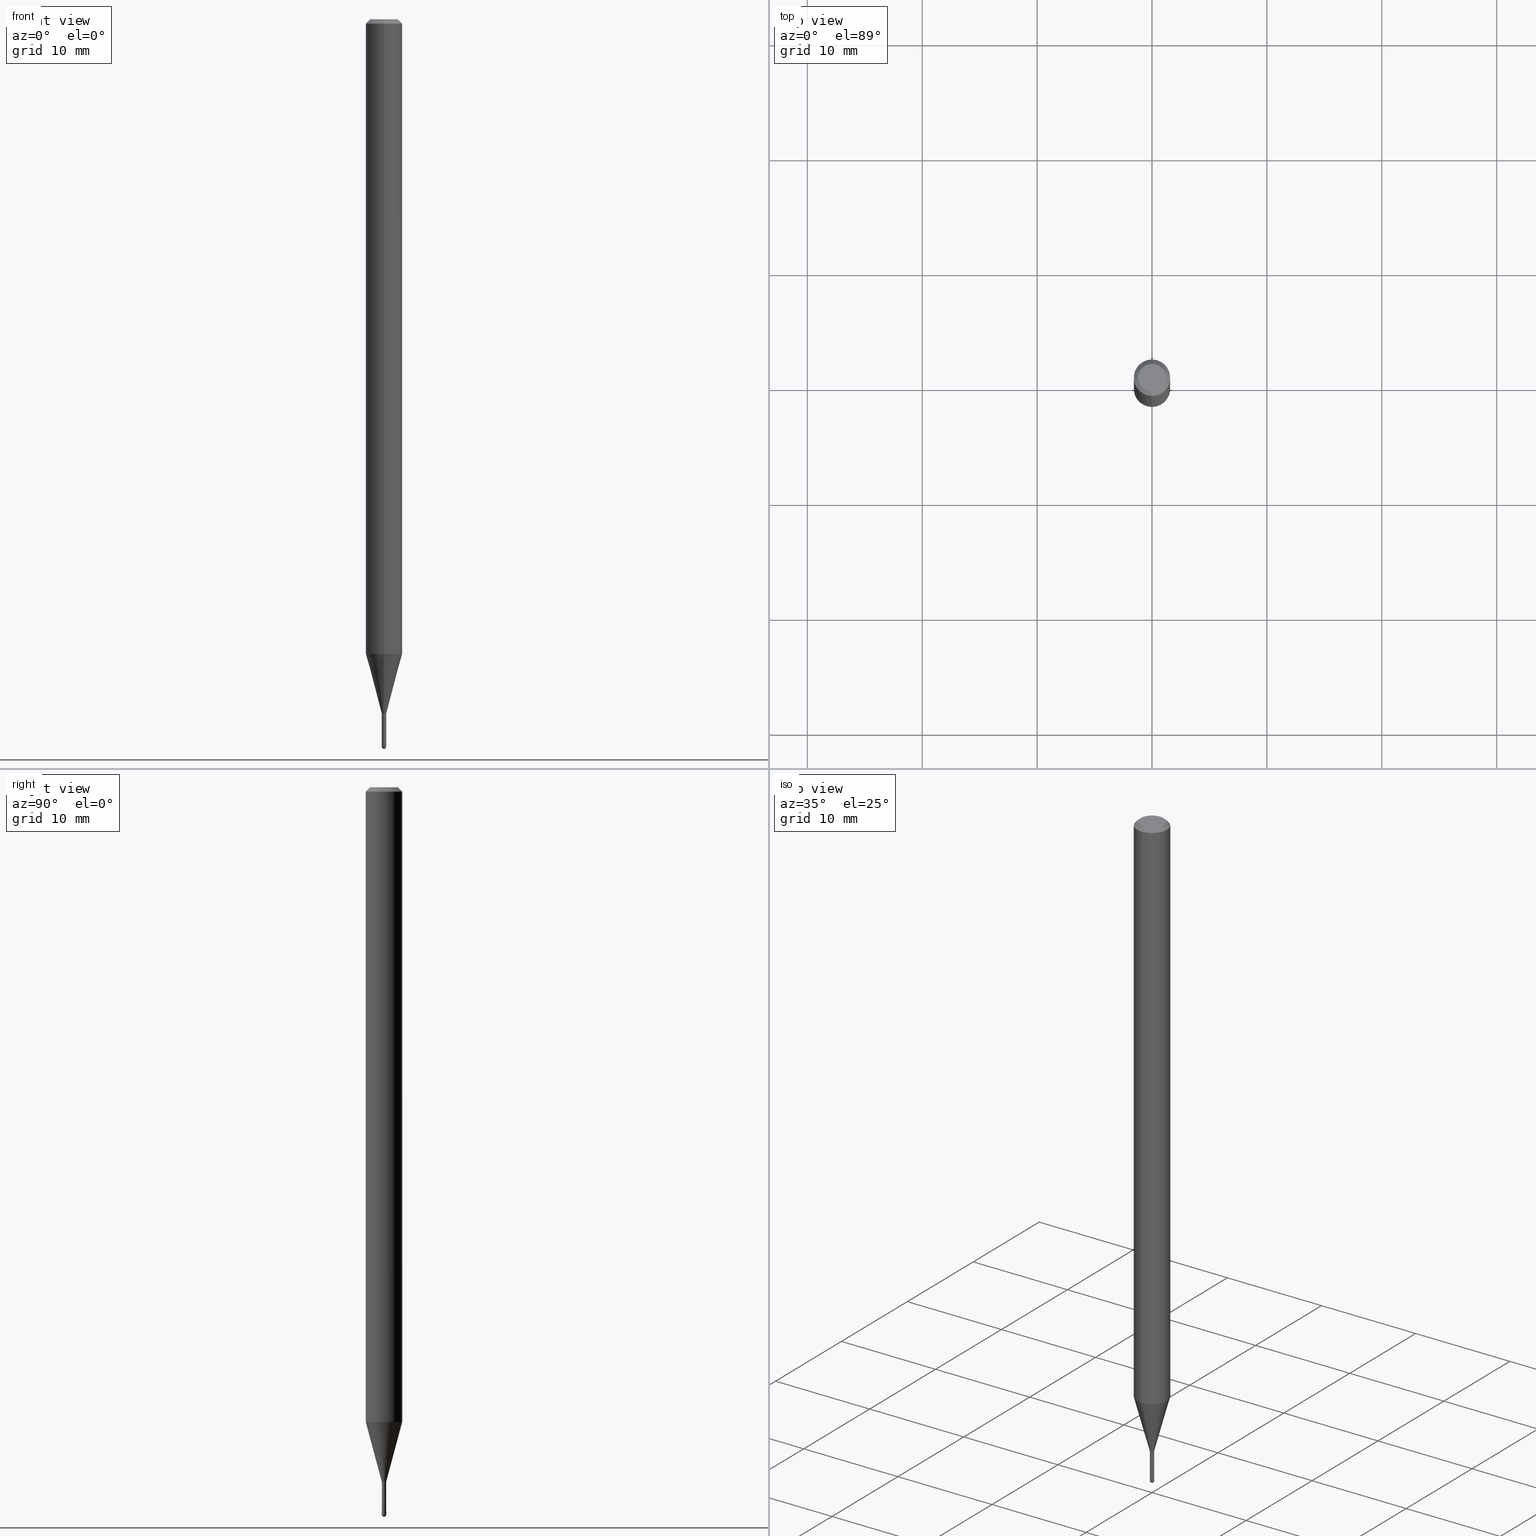
[diagram: canonical four-view strip — front | top / right | iso, engineering-drawing reading convention]
A machine part, canonical four-view strip (front | top / right | iso — engineering-drawing reading convention). The complete STEP part file that produces these views, byte-faithful:
ISO-10303-21;
HEADER;
FILE_DESCRIPTION (( 'STEP AP203' ),
    '1' );
FILE_NAME ('01528.STEP',
    '2024-03-07T19:36:54',
    ( '' ),
    ( '' ),
    'SwSTEP 2.0',
    'SolidWorks 2023',
    '' );
FILE_SCHEMA (( 'CONFIG_CONTROL_DESIGN' ));
ENDSEC;

DATA;
#1 = DIRECTION ( 'NONE',  ( -2.445490445404648555E-29, 3.491450350249176608E-15, 1.000000000000000000 ) ) ;
#2 = APPROVAL ( #274, 'UNSPECIFIED' ) ;
#3 = DIRECTION ( 'NONE',  ( -2.445490445404648555E-29, 3.491450350249176608E-15, 1.000000000000000000 ) ) ;
#4 = DIRECTION ( 'NONE',  ( 2.445490445404648555E-29, -3.491450350249176608E-15, -1.000000000000000000 ) ) ;
#5 = DIRECTION ( 'NONE',  ( 1.000000000000000000, -6.982962677686268288E-15, 0.000000000000000000 ) ) ;
#6 = ORIENTED_EDGE ( 'NONE', *, *, #290, .F. ) ;
#7 = EDGE_CURVE ( 'NONE', #373, #299, #310, .T. ) ;
#8 = DIRECTION ( 'NONE',  ( -2.445468806185136597E-29, 3.491481338843145583E-15, 1.000000000000000000 ) ) ;
#9 = ORIENTED_EDGE ( 'NONE', *, *, #170, .F. ) ;
#10 = ORIENTED_EDGE ( 'NONE', *, *, #215, .F. ) ;
#11 = ADVANCED_FACE ( 'NONE', ( #191 ), #346, .F. ) ;
#12 = DIRECTION ( 'NONE',  ( 2.438088387897960049E-29, -3.491481338843145188E-15, -1.000000000000000000 ) ) ;
#13 = DIRECTION ( 'NONE',  ( -2.445490445404648555E-29, 3.491450350249176608E-15, 1.000000000000000000 ) ) ;
#14 = DIRECTION ( 'NONE',  ( 1.000000000000000000, 0.000000000000000000, 0.000000000000000000 ) ) ;
#15 = EDGE_CURVE ( 'NONE', #299, #373, #187, .T. ) ;
#16 = LENGTH_MEASURE_WITH_UNIT ( LENGTH_MEASURE( 0.02539999999999999897 ), #55 );
#18 = ORIENTED_EDGE ( 'NONE', *, *, #343, .T. ) ;
#17 = CARTESIAN_POINT ( 'NONE',  ( 5.820215758720625190E-29, -8.309725586446686731E-15, -2.379999999999999893 ) ) ;
#19 = CARTESIAN_POINT ( 'NONE',  ( 0.000000000000000000, 0.000000000000000000, 0.000000000000000000 ) ) ;
#20 = CYLINDRICAL_SURFACE ( 'NONE', #448, 0.007499999999999999722 ) ;
#21 = VECTOR ( 'NONE', #358, 39.37007874015748854 ) ;
#22 = DIRECTION ( 'NONE',  ( 6.982962677686266711E-15, 1.000000000000000000, 0.000000000000000000 ) ) ;
#23 = ORIENTED_EDGE ( 'NONE', *, *, #99, .F. ) ;
#24 = CALENDAR_DATE ( 2024, 7, 3 ) ;
#25 = AXIS2_PLACEMENT_3D ( 'NONE', #431, #361, #273 ) ;
#26 = EDGE_CURVE ( 'NONE', #181, #364, #109, .T. ) ;
#27 = DIRECTION ( 'NONE',  ( 1.000000000000000000, -6.982962677686268288E-15, 0.000000000000000000 ) ) ;
#28 = EDGE_CURVE ( 'NONE', #440, #122, #250, .T. ) ;
#29 = ORIENTED_EDGE ( 'NONE', *, *, #182, .T. ) ;
#30 = EDGE_LOOP ( 'NONE', ( #329, #374, #342, #6 ) ) ;
#31 = VECTOR ( 'NONE', #451, 39.37007874015748143 ) ;
#32 = ORIENTED_EDGE ( 'NONE', *, *, #54, .F. ) ;
#33 = ORIENTED_EDGE ( 'NONE', *, *, #54, .T. ) ;
#34 = DIRECTION ( 'NONE',  ( -6.982962677686265922E-15, -1.000000000000000000, 3.483106191921935554E-15 ) ) ;
#35 = DIRECTION ( 'NONE',  ( -6.982962677686265922E-15, -1.000000000000000000, 3.491450350249177002E-15 ) ) ;
#36 = VERTEX_POINT ( 'NONE', #391 ) ;
#37 = DIRECTION ( 'NONE',  ( -6.982962677686265922E-15, -1.000000000000000000, 3.491450350249176608E-15 ) ) ;
#38 = DIRECTION ( 'NONE',  ( -6.982962677686265922E-15, -1.000000000000000000, 3.491450350249176608E-15 ) ) ;
#39 = CARTESIAN_POINT ( 'NONE',  ( -5.237222008259017030E-17, -0.007500000000008506806, -2.379999999999999893 ) ) ;
#40 = SECURITY_CLASSIFICATION ( '', '', #69 ) ;
#41 = AXIS2_PLACEMENT_3D ( 'NONE', #19, #145, #450 ) ;
#42 = CIRCLE ( 'NONE', #134, 0.006999999999999999278 ) ;
#43 = CC_DESIGN_APPROVAL ( #460, ( #278 ) ) ;
#44 = CYLINDRICAL_SURFACE ( 'NONE', #213, 0.06250000000000000000 ) ;
#45 = DIRECTION ( 'NONE',  ( -2.445490445404648555E-29, 3.491450350249176608E-15, 1.000000000000000000 ) ) ;
#46 = EDGE_CURVE ( 'NONE', #91, #148, #352, .T. ) ;
#47 = CIRCLE ( 'NONE', #95, 0.06250000000000000000 ) ;
#48 = AXIS2_PLACEMENT_3D ( 'NONE', #318, #244, #246 ) ;
#50 = ORIENTED_EDGE ( 'NONE', *, *, #28, .T. ) ;
#49 =( NAMED_UNIT ( * ) PLANE_ANGLE_UNIT ( ) SI_UNIT ( $, .RADIAN. ) );
#51 = DIRECTION ( 'NONE',  ( -2.445490445404648555E-29, 3.491450350249176608E-15, 1.000000000000000000 ) ) ;
#52 = CARTESIAN_POINT ( 'NONE',  ( 5.318299057520989727E-29, -7.592986978135192084E-15, -2.174737205583719302 ) ) ;
#53 = DIRECTION ( 'NONE',  ( -2.445468806185136597E-29, 3.491481338843145583E-15, 1.000000000000000000 ) ) ;
#54 = EDGE_CURVE ( 'NONE', #364, #181, #330, .T. ) ;
#55 =( LENGTH_UNIT ( ) NAMED_UNIT ( * ) SI_UNIT ( $, .METRE. ) );
#56 = ADVANCED_FACE ( 'NONE', ( #484 ), #233, .T. ) ;
#57 = LOCAL_TIME ( 14, 36, 54.00000000000000000, #150 ) ;
#58 = CARTESIAN_POINT ( 'NONE',  ( 6.094689624699569272E-29, -8.703435722165901293E-15, -2.492500000000000160 ) ) ;
#59 = AXIS2_PLACEMENT_3D ( 'NONE', #67, #388, #34 ) ;
#60 = EDGE_CURVE ( 'NONE', #443, #91, #76, .T. ) ;
#61 = PERSON_AND_ORGANIZATION_ROLE ( 'design_supplier' ) ;
#62 = EDGE_CURVE ( 'NONE', #168, #181, #392, .T. ) ;
#63 = VECTOR ( 'NONE', #158, 39.37007874015748143 ) ;
#64 = VECTOR ( 'NONE', #175, 39.37007874015748143 ) ;
#65 = DATE_AND_TIME ( #308, #414 ) ;
#66 = EDGE_CURVE ( 'NONE', #373, #483, #197, .T. ) ;
#67 = CARTESIAN_POINT ( 'NONE',  ( 3.668235668106974794E-31, -5.237175525373768264E-17, -0.01500000000000000812 ) ) ;
#68 = ORIENTED_EDGE ( 'NONE', *, *, #423, .T. ) ;
#69 = SECURITY_CLASSIFICATION_LEVEL ( 'unclassified' ) ;
#70 = DIRECTION ( 'NONE',  ( -6.982962677686266711E-15, -1.000000000000000000, 3.491450350249177002E-15 ) ) ;
#71 = ORIENTED_EDGE ( 'NONE', *, *, #225, .F. ) ;
#72 = ORIENTED_EDGE ( 'NONE', *, *, #288, .F. ) ;
#73 = DIRECTION ( 'NONE',  ( 6.982962677686265922E-15, 1.000000000000000000, -3.483106191921935554E-15 ) ) ;
#74 = FACE_OUTER_BOUND ( 'NONE', #94, .T. ) ;
#75 = ORIENTED_EDGE ( 'NONE', *, *, #389, .F. ) ;
#76 = CIRCLE ( 'NONE', #25, 0.06250000000000000000 ) ;
#77 = AXIS2_PLACEMENT_3D ( 'NONE', #161, #434, #240 ) ;
#78 = FACE_OUTER_BOUND ( 'NONE', #393, .T. ) ;
#79 = FACE_OUTER_BOUND ( 'NONE', #106, .T. ) ;
#80 = DIRECTION ( 'NONE',  ( -6.982962677686266711E-15, -1.000000000000000000, 0.000000000000000000 ) ) ;
#81 = ORIENTED_EDGE ( 'NONE', *, *, #402, .T. ) ;
#82 = FACE_OUTER_BOUND ( 'NONE', #416, .T. ) ;
#83 = CARTESIAN_POINT ( 'NONE',  ( 5.820267260063064665E-29, -8.309651833593041439E-15, -2.380000000000000338 ) ) ;
#84 = EDGE_LOOP ( 'NONE', ( #303, #463, #105, #462 ) ) ;
#85 = DIRECTION ( 'NONE',  ( -2.445490445404648555E-29, 3.491450350249176608E-15, 1.000000000000000000 ) ) ;
#86 = LOCAL_TIME ( 14, 36, 54.00000000000000000, #268 ) ;
#87 = AXIS2_PLACEMENT_3D ( 'NONE', #429, #124, #279 ) ;
#88 = VECTOR ( 'NONE', #261, 39.37007874015748143 ) ;
#89 = DIRECTION ( 'NONE',  ( -2.445490445404648555E-29, 3.491450350249176608E-15, 1.000000000000000000 ) ) ;
#91 = VERTEX_POINT ( 'NONE', #508 ) ;
#90 = DIRECTION ( 'NONE',  ( -6.982962677686265922E-15, -1.000000000000000000, 0.000000000000000000 ) ) ;
#93 = ORIENTED_EDGE ( 'NONE', *, *, #255, .F. ) ;
#92 = CARTESIAN_POINT ( 'NONE',  ( 0.007499999999999999722, -8.558493631839260850E-15, -2.492500000000000160 ) ) ;
#94 = EDGE_LOOP ( 'NONE', ( #102, #311, #137, #400 ) ) ;
#95 = AXIS2_PLACEMENT_3D ( 'NONE', #52, #491, #372 ) ;
#96 = DIRECTION ( 'NONE',  ( -6.982962677686266711E-15, -1.000000000000000000, 0.000000000000000000 ) ) ;
#97 = CIRCLE ( 'NONE', #500, 0.007499999999999999722 ) ;
#98 = ORIENTED_EDGE ( 'NONE', *, *, #225, .T. ) ;
#99 = EDGE_CURVE ( 'NONE', #507, #162, #369, .T. ) ;
#100 = FACE_OUTER_BOUND ( 'NONE', #430, .T. ) ;
#102 = ORIENTED_EDGE ( 'NONE', *, *, #60, .T. ) ;
#101 = DIRECTION ( 'NONE',  ( 5.024295867788190974E-15, 0.7071067811865681119, 0.7071067811865270336 ) ) ;
#103 = CC_DESIGN_PERSON_AND_ORGANIZATION_ASSIGNMENT ( #113, #467, ( #503 ) ) ;
#105 = ORIENTED_EDGE ( 'NONE', *, *, #255, .T. ) ;
#104 = DIRECTION ( 'NONE',  ( -6.982962677686265922E-15, -1.000000000000000000, 0.000000000000000000 ) ) ;
#106 = EDGE_LOOP ( 'NONE', ( #385, #512, #201, #136 ) ) ;
#107 = CARTESIAN_POINT ( 'NONE',  ( -4.364351673553916201E-16, -0.06250000000000000000, 2.182156468905735380E-16 ) ) ;
#108 = DATE_AND_TIME ( #464, #57 ) ;
#109 = CIRCLE ( 'NONE', #419, 0.007500000000000197481 ) ;
#110 = EDGE_CURVE ( 'NONE', #91, #443, #47, .T. ) ;
#111 = PERSON_AND_ORGANIZATION ( #445, #406 ) ;
#112 = CALENDAR_DATE ( 2024, 7, 3 ) ;
#113 = PERSON_AND_ORGANIZATION ( #445, #406 ) ;
#114 = APPROVAL_PERSON_ORGANIZATION ( #425, #2, #153 ) ;
#115 = AXIS2_PLACEMENT_3D ( 'NONE', #411, #218, #138 ) ;
#116 = ADVANCED_FACE ( 'NONE', ( #100 ), #219, .F. ) ;
#117 = CIRCLE ( 'NONE', #338, 0.007500000000000197481 ) ;
#118 = DATE_TIME_ROLE ( 'creation_date' ) ;
#119 = DIRECTION ( 'NONE',  ( -2.445490445404648555E-29, 3.491450350249176608E-15, 1.000000000000000000 ) ) ;
#120 = DIRECTION ( 'NONE',  ( 6.982962677686265922E-15, 1.000000000000000000, -3.483106191921935554E-15 ) ) ;
#121 = DIRECTION ( 'NONE',  ( -2.445490445404648555E-29, 3.491450350249176608E-15, 1.000000000000000000 ) ) ;
#122 = VERTEX_POINT ( 'NONE', #488 ) ;
#123 = DIRECTION ( 'NONE',  ( -2.445490445404648555E-29, 3.491450350249176608E-15, 1.000000000000000000 ) ) ;
#124 = DIRECTION ( 'NONE',  ( -2.445490445404648555E-29, 3.491450350249176608E-15, 1.000000000000000000 ) ) ;
#125 = CARTESIAN_POINT ( 'NONE',  ( 5.820267260063063544E-29, -8.309651833593039861E-15, -2.379999999999999893 ) ) ;
#126 = AXIS2_PLACEMENT_3D ( 'NONE', #125, #13, #174 ) ;
#127 = ADVANCED_FACE ( 'NONE', ( #214 ), #247, .T. ) ;
#128 = DIRECTION ( 'NONE',  ( -6.982962677686265922E-15, -1.000000000000000000, 3.483106191921935554E-15 ) ) ;
#129 = DIRECTION ( 'NONE',  ( -4.937700262164674260E-15, -0.7071067811865632269, 0.7071067811865319186 ) ) ;
#130 = DIRECTION ( 'NONE',  ( -1.000000000000000000, 6.982962677686265922E-15, -4.883557194083112340E-29 ) ) ;
#131 = UNCERTAINTY_MEASURE_WITH_UNIT (LENGTH_MEASURE( 1.000000000000000082E-05 ), #300, 'distance_accuracy_value', 'NONE');
#132 = FACE_OUTER_BOUND ( 'NONE', #473, .T. ) ;
#133 = CLOSED_SHELL ( 'NONE', ( #173, #263, #192, #370, #475, #56, #127, #163, #208, #11, #380, #116 ) ) ;
#134 = AXIS2_PLACEMENT_3D ( 'NONE', #480, #89, #286 ) ;
#136 = ORIENTED_EDGE ( 'NONE', *, *, #231, .F. ) ;
#135 = DIRECTION ( 'NONE',  ( 1.000000000000000000, -6.982962677686268288E-15, 0.000000000000000000 ) ) ;
#137 = ORIENTED_EDGE ( 'NONE', *, *, #272, .F. ) ;
#138 = DIRECTION ( 'NONE',  ( -6.982962677686265922E-15, -1.000000000000000000, 3.491450350249176608E-15 ) ) ;
#139 = FACE_OUTER_BOUND ( 'NONE', #152, .T. ) ;
#140 = AXIS2_PLACEMENT_3D ( 'NONE', #317, #123, #447 ) ;
#141 = CIRCLE ( 'NONE', #59, 0.06250000000000000000 ) ;
#143 = VERTEX_POINT ( 'NONE', #457 ) ;
#142 = CARTESIAN_POINT ( 'NONE',  ( -4.364351673553912750E-16, -0.06250000000000005551, -0.01499999999999979128 ) ) ;
#144 = CC_DESIGN_APPROVAL ( #381, ( #40 ) ) ;
#145 = DIRECTION ( 'NONE',  ( -2.445490445404648555E-29, 3.491450350249176608E-15, 1.000000000000000000 ) ) ;
#146 = DIRECTION ( 'NONE',  ( -2.445468806185136597E-29, 3.491481338843145583E-15, 1.000000000000000000 ) ) ;
#147 = CARTESIAN_POINT ( 'NONE',  ( 5.329070518206692306E-17, 0.007499999999991865604, -2.379500000000000171 ) ) ;
#148 = VERTEX_POINT ( 'NONE', #415 ) ;
#149 = EDGE_CURVE ( 'NONE', #470, #493, #337, .T. ) ;
#150 = COORDINATED_UNIVERSAL_TIME_OFFSET ( 5, 0, .BEHIND. ) ;
#151 =( GEOMETRIC_REPRESENTATION_CONTEXT ( 3 ) GLOBAL_UNCERTAINTY_ASSIGNED_CONTEXT ( ( #131 ) ) GLOBAL_UNIT_ASSIGNED_CONTEXT ( ( #300, #49, #453 ) ) REPRESENTATION_CONTEXT ( 'NONE', 'WORKASPACE' ) );
#152 = EDGE_LOOP ( 'NONE', ( #185, #341, #254, #93 ) ) ;
#153 = APPROVAL_ROLE ( '' ) ;
#154 = DATE_AND_TIME ( #24, #86 ) ;
#155 = CC_DESIGN_PERSON_AND_ORGANIZATION_ASSIGNMENT ( #499, #61, ( #382 ) ) ;
#156 = ORIENTED_EDGE ( 'NONE', *, *, #307, .F. ) ;
#157 = ORIENTED_EDGE ( 'NONE', *, *, #222, .F. ) ;
#158 = DIRECTION ( 'NONE',  ( -2.445490445404648555E-29, 3.491450350249176608E-15, 1.000000000000000000 ) ) ;
#159 = PLANE ( 'NONE',  #48 ) ;
#160 = ORIENTED_EDGE ( 'NONE', *, *, #46, .F. ) ;
#161 = CARTESIAN_POINT ( 'NONE',  ( 6.094689624699569272E-29, -8.703435722165901293E-15, -2.492500000000000160 ) ) ;
#162 = VERTEX_POINT ( 'NONE', #456 ) ;
#163 = ADVANCED_FACE ( 'NONE', ( #256 ), #344, .T. ) ;
#164 = LINE ( 'NONE', #497, #455 ) ;
#165 = DIMENSIONAL_EXPONENTS ( 1.000000000000000000, 0.000000000000000000, 0.000000000000000000, 0.000000000000000000, 0.000000000000000000, 0.000000000000000000, 0.000000000000000000 ) ;
#166 = CARTESIAN_POINT ( 'NONE',  ( 2.486899575160916402E-16, 0.007499999999991888155, -2.379999999999999893 ) ) ;
#167 = FACE_OUTER_BOUND ( 'NONE', #433, .T. ) ;
#168 = VERTEX_POINT ( 'NONE', #166 ) ;
#169 = AXIS2_PLACEMENT_3D ( 'NONE', #211, #363, #14 ) ;
#170 = EDGE_CURVE ( 'NONE', #470, #364, #478, .T. ) ;
#171 = CYLINDRICAL_SURFACE ( 'NONE', #394, 0.007500000000000197481 ) ;
#172 = CARTESIAN_POINT ( 'NONE',  ( 3.840629472727447874E-16, 0.04749999999999999362, -1.747056831868805136E-16 ) ) ;
#173 = ADVANCED_FACE ( 'NONE', ( #82 ), #171, .F. ) ;
#174 = DIRECTION ( 'NONE',  ( -6.982962677686265922E-15, -1.000000000000000000, 0.000000000000000000 ) ) ;
#176 = ORIENTED_EDGE ( 'NONE', *, *, #423, .F. ) ;
#175 = DIRECTION ( 'NONE',  ( 4.937700262164548042E-15, 0.7071067811865451302, -0.7071067811865499042 ) ) ;
#178 = ORIENTED_EDGE ( 'NONE', *, *, #343, .F. ) ;
#177 = CARTESIAN_POINT ( 'NONE',  ( 4.973799150326520486E-17, 0.006999999999991689953, -2.380000000000000338 ) ) ;
#179 = EDGE_CURVE ( 'NONE', #168, #91, #164, .T. ) ;
#181 = VERTEX_POINT ( 'NONE', #147 ) ;
#180 = CARTESIAN_POINT ( 'NONE',  ( -0.007499999999999999722, -8.452830706574606210E-15, -2.379999999999999893 ) ) ;
#182 = EDGE_CURVE ( 'NONE', #443, #483, #301, .T. ) ;
#183 = AXIS2_PLACEMENT_3D ( 'NONE', #444, #360, #128 ) ;
#184 = CARTESIAN_POINT ( 'NONE',  ( 0.000000000000000000, 0.000000000000000000, 0.000000000000000000 ) ) ;
#185 = ORIENTED_EDGE ( 'NONE', *, *, #288, .T. ) ;
#186 = APPLICATION_PROTOCOL_DEFINITION ( 'international standard', 'config_control_design', 1994, #315 ) ;
#187 = CIRCLE ( 'NONE', #465, 0.04749999999999999362 ) ;
#188 = SHAPE_DEFINITION_REPRESENTATION ( #355, #407 ) ;
#189 = AXIS2_PLACEMENT_3D ( 'NONE', #243, #238, #328 ) ;
#190 = APPROVAL_PERSON_ORGANIZATION ( #224, #381, #390 ) ;
#191 = FACE_OUTER_BOUND ( 'NONE', #367, .T. ) ;
#192 = ADVANCED_FACE ( 'NONE', ( #79 ), #485, .T. ) ;
#193 = EDGE_LOOP ( 'NONE', ( #289, #417, #258, #23, #81 ) ) ;
#194 = APPROVAL_STATUS ( 'not_yet_approved' ) ;
#195 = ORIENTED_EDGE ( 'NONE', *, *, #298, .T. ) ;
#196 = ORIENTED_EDGE ( 'NONE', *, *, #496, .F. ) ;
#197 = LINE ( 'NONE', #200, #206 ) ;
#198 = DIRECTION ( 'NONE',  ( -2.445490445404648275E-29, 3.491450350249176608E-15, 1.000000000000000000 ) ) ;
#199 = CONICAL_SURFACE ( 'NONE', #223, 0.007500000000000197481, 0.2617993877991577345 ) ;
#200 = CARTESIAN_POINT ( 'NONE',  ( -4.287811248607203282E-16, -0.06250000000000005551, -0.01499999999999979128 ) ) ;
#201 = ORIENTED_EDGE ( 'NONE', *, *, #272, .T. ) ;
#202 = CARTESIAN_POINT ( 'NONE',  ( 5.237222008270519608E-17, 0.007499999999991690397, -2.379999999999999893 ) ) ;
#203 = CARTESIAN_POINT ( 'NONE',  ( -3.773273898774340269E-16, -0.04749999999999999362, 1.569821000867912710E-16 ) ) ;
#204 = CC_DESIGN_PERSON_AND_ORGANIZATION_ASSIGNMENT ( #428, #266, ( #382 ) ) ;
#205 = FACE_OUTER_BOUND ( 'NONE', #418, .T. ) ;
#206 = VECTOR ( 'NONE', #350, 39.37007874015748143 ) ;
#207 = AXIS2_PLACEMENT_3D ( 'NONE', #212, #347, #27 ) ;
#208 = ADVANCED_FACE ( 'NONE', ( #78 ), #159, .F. ) ;
#209 = DIRECTION ( 'NONE',  ( -2.445490445404648555E-29, 3.491450350249176608E-15, 1.000000000000000000 ) ) ;
#210 = DIRECTION ( 'NONE',  ( -1.000000000000000000, 6.982962677686265922E-15, -4.876176775795935793E-29 ) ) ;
#211 = CARTESIAN_POINT ( 'NONE',  ( 0.000000000000000000, 0.000000000000000000, 0.000000000000000000 ) ) ;
#212 = CARTESIAN_POINT ( 'NONE',  ( 6.095330999416453954E-29, -8.702517237066541600E-15, -2.492500000000000160 ) ) ;
#213 = AXIS2_PLACEMENT_3D ( 'NONE', #439, #232, #38 ) ;
#214 = FACE_OUTER_BOUND ( 'NONE', #234, .T. ) ;
#215 = EDGE_CURVE ( 'NONE', #36, #143, #413, .T. ) ;
#216 = ORIENTED_EDGE ( 'NONE', *, *, #99, .T. ) ;
#217 = CC_DESIGN_PERSON_AND_ORGANIZATION_ASSIGNMENT ( #384, #345, ( #278 ) ) ;
#218 = DIRECTION ( 'NONE',  ( -2.445490445404648555E-29, 3.491450350249176608E-15, 1.000000000000000000 ) ) ;
#219 = CYLINDRICAL_SURFACE ( 'NONE', #41, 0.007500000000000197481 ) ;
#220 = ORIENTED_EDGE ( 'NONE', *, *, #15, .F. ) ;
#221 = AXIS2_PLACEMENT_3D ( 'NONE', #505, #198, #37 ) ;
#222 = EDGE_CURVE ( 'NONE', #148, #483, #141, .T. ) ;
#223 = AXIS2_PLACEMENT_3D ( 'NONE', #409, #296, #90 ) ;
#224 = PERSON_AND_ORGANIZATION ( #445, #406 ) ;
#225 = EDGE_CURVE ( 'NONE', #459, #162, #264, .T. ) ;
#226 = ORIENTED_EDGE ( 'NONE', *, *, #511, .T. ) ;
#227 = COORDINATED_UNIVERSAL_TIME_OFFSET ( 5, 0, .BEHIND. ) ;
#228 = ORIENTED_EDGE ( 'NONE', *, *, #7, .T. ) ;
#229 = CALENDAR_DATE ( 2024, 7, 3 ) ;
#230 = DIRECTION ( 'NONE',  ( -7.105427357601001070E-15, -1.000000000000000000, 0.000000000000000000 ) ) ;
#231 = EDGE_CURVE ( 'NONE', #299, #148, #442, .T. ) ;
#232 = DIRECTION ( 'NONE',  ( -2.445490445404648555E-29, 3.491450350249176608E-15, 1.000000000000000000 ) ) ;
#233 = CONICAL_SURFACE ( 'NONE', #304, 0.007500000000000197481, 0.2617993877991577345 ) ;
#234 = EDGE_LOOP ( 'NONE', ( #160, #340, #29, #157 ) ) ;
#235 = CARTESIAN_POINT ( 'NONE',  ( -4.888073874374565939E-17, -0.007000000000008309471, -2.380000000000000338 ) ) ;
#236 = CARTESIAN_POINT ( 'NONE',  ( 3.668235668106974794E-31, -5.237175525373768264E-17, -0.01500000000000000812 ) ) ;
#237 = ADVANCED_FACE ( 'NONE', ( #321 ), #280, .T. ) ;
#238 = DIRECTION ( 'NONE',  ( -2.445468806185136597E-29, 3.491481338843145583E-15, 1.000000000000000000 ) ) ;
#239 = DIRECTION ( 'NONE',  ( 1.000000000000000000, -6.982962677686268288E-15, 0.000000000000000000 ) ) ;
#240 = DIRECTION ( 'NONE',  ( 6.982962677686265922E-15, 1.000000000000000000, 0.000000000000000000 ) ) ;
#241 = AXIS2_PLACEMENT_3D ( 'NONE', #58, #339, #22 ) ;
#242 = CC_DESIGN_DATE_AND_TIME_ASSIGNMENT ( #154, #118, ( #278 ) ) ;
#243 = CARTESIAN_POINT ( 'NONE',  ( 6.095330999416453954E-29, -8.702517237066541600E-15, -2.492500000000000160 ) ) ;
#244 = DIRECTION ( 'NONE',  ( 2.445490445404648275E-29, -3.491450350249176608E-15, -1.000000000000000000 ) ) ;
#245 = DIRECTION ( 'NONE',  ( 1.000000000000000000, -6.982962677686268288E-15, 0.000000000000000000 ) ) ;
#246 = DIRECTION ( 'NONE',  ( 6.982962677686265922E-15, 1.000000000000000000, -3.491450350249176608E-15 ) ) ;
#247 = CYLINDRICAL_SURFACE ( 'NONE', #115, 0.06250000000000000000 ) ;
#249 = EDGE_LOOP ( 'NONE', ( #335, #220, #276, #260 ) ) ;
#248 = DIRECTION ( 'NONE',  ( 1.000000000000000000, -6.982962677686267499E-15, 4.876176775795936353E-29 ) ) ;
#250 = CIRCLE ( 'NONE', #294, 0.007499999999999925997 ) ;
#251 = CIRCLE ( 'NONE', #494, 0.007499999999999999722 ) ;
#252 = CC_DESIGN_SECURITY_CLASSIFICATION ( #40, ( #382 ) ) ;
#254 = ORIENTED_EDGE ( 'NONE', *, *, #60, .F. ) ;
#253 = FACE_OUTER_BOUND ( 'NONE', #461, .T. ) ;
#255 = EDGE_CURVE ( 'NONE', #319, #443, #399, .T. ) ;
#256 = FACE_OUTER_BOUND ( 'NONE', #249, .T. ) ;
#257 = CYLINDRICAL_SURFACE ( 'NONE', #509, 0.007499999999999999722 ) ;
#258 = ORIENTED_EDGE ( 'NONE', *, *, #511, .F. ) ;
#259 = CARTESIAN_POINT ( 'NONE',  ( -0.007499999999999999722, 5.329070518200751197E-17, -3.689201317691179266E-31 ) ) ;
#260 = ORIENTED_EDGE ( 'NONE', *, *, #222, .T. ) ;
#261 = DIRECTION ( 'NONE',  ( -2.445490445404648555E-29, 3.491450350249176608E-15, 1.000000000000000000 ) ) ;
#262 = APPLICATION_CONTEXT ( 'configuration controlled 3d designs of mechanical parts and assemblies' ) ;
#263 = ADVANCED_FACE ( 'NONE', ( #205 ), #323, .T. ) ;
#264 = CIRCLE ( 'NONE', #295, 0.007499999999999999722 ) ;
#265 = DESIGN_CONTEXT ( 'detailed design', #262, 'design' ) ;
#266 = PERSON_AND_ORGANIZATION_ROLE ( 'creator' ) ;
#267 = DATE_TIME_ROLE ( 'classification_date' ) ;
#268 = COORDINATED_UNIVERSAL_TIME_OFFSET ( 5, 0, .BEHIND. ) ;
#269 = ADVANCED_FACE ( 'NONE', ( #132 ), #404, .F. ) ;
#270 = APPROVAL_STATUS ( 'not_yet_approved' ) ;
#271 = LOCAL_TIME ( 14, 36, 54.00000000000000000, #421 ) ;
#272 = EDGE_CURVE ( 'NONE', #483, #148, #471, .T. ) ;
#273 = DIRECTION ( 'NONE',  ( -6.982962677686265922E-15, -1.000000000000000000, 4.370956789862821150E-15 ) ) ;
#274 = APPROVAL_STATUS ( 'not_yet_approved' ) ;
#275 = DIRECTION ( 'NONE',  ( -6.982962677686265922E-15, -1.000000000000000000, 0.000000000000000000 ) ) ;
#276 = ORIENTED_EDGE ( 'NONE', *, *, #231, .T. ) ;
#277 = CARTESIAN_POINT ( 'NONE',  ( 5.820267260063063544E-29, -8.309651833593039861E-15, -2.379999999999999893 ) ) ;
#278 = PRODUCT_DEFINITION ( 'UNKNOWN', '', #382, #265 ) ;
#279 = DIRECTION ( 'NONE',  ( -6.982962677686266711E-15, -1.000000000000000000, 3.491450350249177002E-15 ) ) ;
#280 = SPHERICAL_SURFACE ( 'NONE', #383, 0.007499999999999925997 ) ;
#281 = CIRCLE ( 'NONE', #126, 0.007500000000000197481 ) ;
#282 = DIRECTION ( 'NONE',  ( -2.445490445404648555E-29, 3.491450350249176608E-15, 1.000000000000000000 ) ) ;
#283 = CARTESIAN_POINT ( 'NONE',  ( 5.820267260063063544E-29, -8.309651833593039861E-15, -2.379999999999999893 ) ) ;
#284 = FACE_OUTER_BOUND ( 'NONE', #30, .T. ) ;
#285 = CC_DESIGN_DATE_AND_TIME_ASSIGNMENT ( #108, #267, ( #40 ) ) ;
#286 = DIRECTION ( 'NONE',  ( -6.982962677686266711E-15, -1.000000000000000000, 0.000000000000000000 ) ) ;
#287 = VECTOR ( 'NONE', #129, 39.37007874015748143 ) ;
#288 = EDGE_CURVE ( 'NONE', #319, #168, #281, .T. ) ;
#289 = ORIENTED_EDGE ( 'NONE', *, *, #215, .T. ) ;
#290 = EDGE_CURVE ( 'NONE', #122, #507, #353, .T. ) ;
#292 = ORIENTED_EDGE ( 'NONE', *, *, #298, .F. ) ;
#291 = DIRECTION ( 'NONE',  ( 1.000000000000000000, -6.982962677686267499E-15, 4.876176775795936353E-29 ) ) ;
#293 = APPROVAL_PERSON_ORGANIZATION ( #305, #460, #306 ) ;
#294 = AXIS2_PLACEMENT_3D ( 'NONE', #469, #313, #230 ) ;
#295 = AXIS2_PLACEMENT_3D ( 'NONE', #401, #362, #239 ) ;
#297 = EDGE_LOOP ( 'NONE', ( #396, #50, #292, #10 ) ) ;
#296 = DIRECTION ( 'NONE',  ( -2.445490445404648555E-29, 3.491450350249176608E-15, 1.000000000000000000 ) ) ;
#298 = EDGE_CURVE ( 'NONE', #143, #122, #251, .T. ) ;
#299 = VERTEX_POINT ( 'NONE', #172 ) ;
#300 =( CONVERSION_BASED_UNIT ( 'INCH', #16 ) LENGTH_UNIT ( ) NAMED_UNIT ( #165 ) );
#301 = LINE ( 'NONE', #107, #88 ) ;
#302 = APPLICATION_PROTOCOL_DEFINITION ( 'international standard', 'config_control_design', 1994, #262 ) ;
#303 = ORIENTED_EDGE ( 'NONE', *, *, #179, .F. ) ;
#304 = AXIS2_PLACEMENT_3D ( 'NONE', #277, #309, #397 ) ;
#305 = PERSON_AND_ORGANIZATION ( #445, #406 ) ;
#306 = APPROVAL_ROLE ( '' ) ;
#307 = EDGE_CURVE ( 'NONE', #319, #364, #325, .T. ) ;
#308 = CALENDAR_DATE ( 2024, 7, 3 ) ;
#309 = DIRECTION ( 'NONE',  ( -2.445490445404648555E-29, 3.491450350249176608E-15, 1.000000000000000000 ) ) ;
#310 = CIRCLE ( 'NONE', #87, 0.04749999999999999362 ) ;
#311 = ORIENTED_EDGE ( 'NONE', *, *, #46, .T. ) ;
#312 = COORDINATED_UNIVERSAL_TIME_OFFSET ( 5, 0, .BEHIND. ) ;
#313 = DIRECTION ( 'NONE',  ( -1.000000000000000000, 7.105427357601001070E-15, -4.926315508542082329E-29 ) ) ;
#314 = AXIS2_PLACEMENT_3D ( 'NONE', #371, #51, #96 ) ;
#315 = APPLICATION_CONTEXT ( 'configuration controlled 3d designs of mechanical parts and assemblies' ) ;
#316 = ORIENTED_EDGE ( 'NONE', *, *, #26, .T. ) ;
#317 = CARTESIAN_POINT ( 'NONE',  ( 5.819044514840360328E-29, -8.307906108417915442E-15, -2.379500000000000171 ) ) ;
#318 = CARTESIAN_POINT ( 'NONE',  ( 3.316907271900976096E-16, 0.04749999999999999362, -1.702747874118581845E-16 ) ) ;
#319 = VERTEX_POINT ( 'NONE', #327 ) ;
#320 = MANIFOLD_SOLID_BREP ( 'Body-Move/Copy2[2]', #133 ) ;
#321 = FACE_OUTER_BOUND ( 'NONE', #297, .T. ) ;
#322 = CARTESIAN_POINT ( 'NONE',  ( 5.820267260063064665E-29, -8.309651833593041439E-15, -2.380000000000000338 ) ) ;
#323 = CONICAL_SURFACE ( 'NONE', #424, 0.006999999999999999278, 0.7853981633974739252 ) ;
#324 = CARTESIAN_POINT ( 'NONE',  ( 0.000000000000000000, 0.000000000000000000, 0.000000000000000000 ) ) ;
#325 = LINE ( 'NONE', #446, #375 ) ;
#326 = ORIENTED_EDGE ( 'NONE', *, *, #149, .F. ) ;
#327 = CARTESIAN_POINT ( 'NONE',  ( -5.237222008259017030E-17, -0.007500000000008506806, -2.379999999999999893 ) ) ;
#329 = ORIENTED_EDGE ( 'NONE', *, *, #28, .F. ) ;
#328 = DIRECTION ( 'NONE',  ( 1.000000000000000000, -6.982962677686268288E-15, 0.000000000000000000 ) ) ;
#330 = CIRCLE ( 'NONE', #140, 0.007500000000000197481 ) ;
#331 = CIRCLE ( 'NONE', #365, 0.007499999999999999722 ) ;
#332 = MECHANICAL_CONTEXT ( 'NONE', #315, 'mechanical' ) ;
#333 = CARTESIAN_POINT ( 'NONE',  ( 5.151434834266615332E-17, 0.006999999999991689953, -2.380000000000000338 ) ) ;
#335 = ORIENTED_EDGE ( 'NONE', *, *, #66, .F. ) ;
#334 = LINE ( 'NONE', #259, #31 ) ;
#336 = DIRECTION ( 'NONE',  ( 1.839019923739651986E-15, 0.2588190451025322303, 0.9659258262890653146 ) ) ;
#337 = CIRCLE ( 'NONE', #314, 0.006999999999999999278 ) ;
#338 = AXIS2_PLACEMENT_3D ( 'NONE', #283, #209, #104 ) ;
#339 = DIRECTION ( 'NONE',  ( 1.000000000000000000, -6.982962677686265922E-15, 4.883557194083112340E-29 ) ) ;
#340 = ORIENTED_EDGE ( 'NONE', *, *, #110, .T. ) ;
#341 = ORIENTED_EDGE ( 'NONE', *, *, #179, .T. ) ;
#342 = ORIENTED_EDGE ( 'NONE', *, *, #402, .F. ) ;
#343 = EDGE_CURVE ( 'NONE', #493, #470, #42, .T. ) ;
#344 = CONICAL_SURFACE ( 'NONE', #359, 0.06250000000000000000, 0.7853981633974483900 ) ;
#345 = PERSON_AND_ORGANIZATION_ROLE ( 'creator' ) ;
#346 = PLANE ( 'NONE',  #221 ) ;
#347 = DIRECTION ( 'NONE',  ( -2.445468806185136597E-29, 3.491481338843145583E-15, 1.000000000000000000 ) ) ;
#348 = ORIENTED_EDGE ( 'NONE', *, *, #62, .F. ) ;
#349 = APPROVAL_DATE_TIME ( #468, #460 ) ;
#350 = DIRECTION ( 'NONE',  ( -4.851104656540964275E-15, -0.7071067811865500152, -0.7071067811865450192 ) ) ;
#351 = LOCAL_TIME ( 14, 36, 54.00000000000000000, #312 ) ;
#352 = LINE ( 'NONE', #510, #63 ) ;
#353 = CIRCLE ( 'NONE', #189, 0.007499999999999999722 ) ;
#354 = CARTESIAN_POINT ( 'NONE',  ( 6.094689624699569272E-29, -8.703435722165901293E-15, -2.492500000000000160 ) ) ;
#355 = PRODUCT_DEFINITION_SHAPE ( 'NONE', 'NONE',  #278 ) ;
#356 = CARTESIAN_POINT ( 'NONE',  ( 5.819044514840360328E-29, -8.307906108417915442E-15, -2.379500000000000171 ) ) ;
#357 = SPHERICAL_SURFACE ( 'NONE', #77, 0.007499999999999925997 ) ;
#358 = DIRECTION ( 'NONE',  ( -1.807323732225380626E-15, -0.2588190451025254024, 0.9659258262890669799 ) ) ;
#359 = AXIS2_PLACEMENT_3D ( 'NONE', #398, #4, #120 ) ;
#360 = DIRECTION ( 'NONE',  ( -2.445490445404648555E-29, 3.491450350249176608E-15, 1.000000000000000000 ) ) ;
#361 = DIRECTION ( 'NONE',  ( -2.445490445404648555E-29, 3.491450350249176608E-15, 1.000000000000000000 ) ) ;
#362 = DIRECTION ( 'NONE',  ( -2.445468806185136597E-29, 3.491481338843145583E-15, 1.000000000000000000 ) ) ;
#363 = DIRECTION ( 'NONE',  ( 0.000000000000000000, 0.000000000000000000, 1.000000000000000000 ) ) ;
#364 = VERTEX_POINT ( 'NONE', #482 ) ;
#365 = AXIS2_PLACEMENT_3D ( 'NONE', #17, #146, #245 ) ;
#366 = CARTESIAN_POINT ( 'NONE',  ( -4.364351673553386185E-16, -0.06250000000000760503, -2.174737205583718858 ) ) ;
#367 = EDGE_LOOP ( 'NONE', ( #326, #178 ) ) ;
#368 = ADVANCED_FACE ( 'NONE', ( #284 ), #357, .T. ) ;
#369 = LINE ( 'NONE', #376, #454 ) ;
#370 = ADVANCED_FACE ( 'NONE', ( #74 ), #44, .T. ) ;
#371 = CARTESIAN_POINT ( 'NONE',  ( 5.820267260063064665E-29, -8.309651833593041439E-15, -2.380000000000000338 ) ) ;
#372 = DIRECTION ( 'NONE',  ( -6.982962677686265922E-15, -1.000000000000000000, 4.370956789862821150E-15 ) ) ;
#373 = VERTEX_POINT ( 'NONE', #203 ) ;
#374 = ORIENTED_EDGE ( 'NONE', *, *, #437, .T. ) ;
#375 = VECTOR ( 'NONE', #1, 39.37007874015748143 ) ;
#376 = CARTESIAN_POINT ( 'NONE',  ( 0.007499999999999999722, -5.237222008264700526E-17, 3.657132581846952195E-31 ) ) ;
#378 = ORIENTED_EDGE ( 'NONE', *, *, #62, .T. ) ;
#377 = DIRECTION ( 'NONE',  ( -2.445468806185136597E-29, 3.491481338843145583E-15, 1.000000000000000000 ) ) ;
#379 = ORIENTED_EDGE ( 'NONE', *, *, #15, .T. ) ;
#380 = ADVANCED_FACE ( 'NONE', ( #167 ), #466, .T. ) ;
#381 = APPROVAL ( #194, 'UNSPECIFIED' ) ;
#382 = PRODUCT_DEFINITION_FORMATION_WITH_SPECIFIED_SOURCE ( 'ANY', '', #503, .NOT_KNOWN. ) ;
#383 = AXIS2_PLACEMENT_3D ( 'NONE', #354, #130, #476 ) ;
#384 = PERSON_AND_ORGANIZATION ( #445, #406 ) ;
#385 = ORIENTED_EDGE ( 'NONE', *, *, #7, .F. ) ;
#386 = APPROVAL_DATE_TIME ( #65, #2 ) ;
#387 = ORIENTED_EDGE ( 'NONE', *, *, #26, .F. ) ;
#388 = DIRECTION ( 'NONE',  ( -2.445490445404648555E-29, 3.491450350249176608E-15, 1.000000000000000000 ) ) ;
#389 = EDGE_CURVE ( 'NONE', #168, #319, #117, .T. ) ;
#390 = APPROVAL_ROLE ( '' ) ;
#391 = CARTESIAN_POINT ( 'NONE',  ( 5.237222008270768592E-17, 0.007499999999991260186, -2.492500000000000160 ) ) ;
#392 = LINE ( 'NONE', #427, #436 ) ;
#393 = EDGE_LOOP ( 'NONE', ( #379, #228 ) ) ;
#394 = AXIS2_PLACEMENT_3D ( 'NONE', #324, #282, #35 ) ;
#395 = CARTESIAN_POINT ( 'NONE',  ( 6.095330999416453954E-29, -8.702517237066541600E-15, -2.492500000000000160 ) ) ;
#396 = ORIENTED_EDGE ( 'NONE', *, *, #437, .F. ) ;
#397 = DIRECTION ( 'NONE',  ( -6.982962677686265922E-15, -1.000000000000000000, 0.000000000000000000 ) ) ;
#398 = CARTESIAN_POINT ( 'NONE',  ( 3.668235668106974794E-31, -5.237175525373768264E-17, -0.01500000000000000812 ) ) ;
#399 = LINE ( 'NONE', #39, #21 ) ;
#400 = ORIENTED_EDGE ( 'NONE', *, *, #182, .F. ) ;
#401 = CARTESIAN_POINT ( 'NONE',  ( 5.820215758720625190E-29, -8.309725586446686731E-15, -2.379999999999999893 ) ) ;
#402 = EDGE_CURVE ( 'NONE', #507, #36, #97, .T. ) ;
#403 = CC_DESIGN_APPROVAL ( #2, ( #382 ) ) ;
#404 = PLANE ( 'NONE',  #438 ) ;
#405 = VECTOR ( 'NONE', #101, 39.37007874015748143 ) ;
#406 = ORGANIZATION ( 'UNSPECIFIED', 'UNSPECIFIED', '' ) ;
#407 = ADVANCED_BREP_SHAPE_REPRESENTATION ( '01528', ( #487, #320, #169 ), #151 ) ;
#408 = CC_DESIGN_PERSON_AND_ORGANIZATION_ASSIGNMENT ( #111, #422, ( #40 ) ) ;
#410 = ORIENTED_EDGE ( 'NONE', *, *, #149, .T. ) ;
#409 = CARTESIAN_POINT ( 'NONE',  ( 5.820267260063063544E-29, -8.309651833593039861E-15, -2.379999999999999893 ) ) ;
#411 = CARTESIAN_POINT ( 'NONE',  ( 0.000000000000000000, 0.000000000000000000, 0.000000000000000000 ) ) ;
#412 = FACE_OUTER_BOUND ( 'NONE', #193, .T. ) ;
#413 = CIRCLE ( 'NONE', #207, 0.007499999999999999722 ) ;
#414 = LOCAL_TIME ( 14, 36, 54.00000000000000000, #227 ) ;
#415 = CARTESIAN_POINT ( 'NONE',  ( 4.440892098501161601E-16, 0.06249999999999995143, -0.01500000000000022669 ) ) ;
#416 = EDGE_LOOP ( 'NONE', ( #75, #378, #316, #156 ) ) ;
#417 = ORIENTED_EDGE ( 'NONE', *, *, #496, .T. ) ;
#418 = EDGE_LOOP ( 'NONE', ( #410, #68, #32, #9 ) ) ;
#419 = AXIS2_PLACEMENT_3D ( 'NONE', #356, #3, #275 ) ;
#420 = CIRCLE ( 'NONE', #241, 0.007499999999999925997 ) ;
#421 = COORDINATED_UNIVERSAL_TIME_OFFSET ( 5, 0, .BEHIND. ) ;
#422 = PERSON_AND_ORGANIZATION_ROLE ( 'classification_officer' ) ;
#423 = EDGE_CURVE ( 'NONE', #493, #181, #495, .T. ) ;
#424 = AXIS2_PLACEMENT_3D ( 'NONE', #83, #45, #80 ) ;
#425 = PERSON_AND_ORGANIZATION ( #445, #406 ) ;
#426 = PRODUCT_RELATED_PRODUCT_CATEGORY ( 'detail', '', ( #503 ) ) ;
#427 = CARTESIAN_POINT ( 'NONE',  ( 5.329070518200891096E-17, 0.007500000000000197481, -2.618587762686951617E-17 ) ) ;
#428 = PERSON_AND_ORGANIZATION ( #445, #406 ) ;
#429 = CARTESIAN_POINT ( 'NONE',  ( 2.167142656480176423E-46, -3.094050521123848220E-32, -8.861791550044619779E-18 ) ) ;
#430 = EDGE_LOOP ( 'NONE', ( #348, #72, #452, #33 ) ) ;
#431 = CARTESIAN_POINT ( 'NONE',  ( 5.318299057520989727E-29, -7.592986978135192084E-15, -2.174737205583719302 ) ) ;
#432 = DIRECTION ( 'NONE',  ( 2.445490445404648555E-29, -3.491450350249176608E-15, -1.000000000000000000 ) ) ;
#433 = EDGE_LOOP ( 'NONE', ( #176, #18, #506, #387 ) ) ;
#434 = DIRECTION ( 'NONE',  ( -1.000000000000000000, 6.982962677686265922E-15, -4.883557194083112340E-29 ) ) ;
#435 = CLOSED_SHELL ( 'NONE', ( #441, #237, #269, #368, #490 ) ) ;
#436 = VECTOR ( 'NONE', #121, 39.37007874015748143 ) ;
#437 = EDGE_CURVE ( 'NONE', #440, #36, #420, .T. ) ;
#438 = AXIS2_PLACEMENT_3D ( 'NONE', #202, #12, #210 ) ;
#439 = CARTESIAN_POINT ( 'NONE',  ( 0.000000000000000000, 0.000000000000000000, 0.000000000000000000 ) ) ;
#440 = VERTEX_POINT ( 'NONE', #489 ) ;
#441 = ADVANCED_FACE ( 'NONE', ( #412 ), #20, .T. ) ;
#442 = LINE ( 'NONE', #481, #64 ) ;
#443 = VERTEX_POINT ( 'NONE', #366 ) ;
#444 = CARTESIAN_POINT ( 'NONE',  ( 3.668235668106974794E-31, -5.237175525373768264E-17, -0.01500000000000000812 ) ) ;
#445 = PERSON ( 'UNSPECIFIED', 'UNSPECIFIED', 'UNSPECIFIED', ('UNSPECIFIED'), ('UNSPECIFIED'), ('UNSPECIFIED') ) ;
#446 = CARTESIAN_POINT ( 'NONE',  ( -5.237222008264837344E-17, -0.007500000000000197481, 2.618587762686951617E-17 ) ) ;
#447 = DIRECTION ( 'NONE',  ( -6.982962677686265922E-15, -1.000000000000000000, 0.000000000000000000 ) ) ;
#448 = AXIS2_PLACEMENT_3D ( 'NONE', #492, #377, #248 ) ;
#449 = CARTESIAN_POINT ( 'NONE',  ( 6.095330999416453954E-29, -8.702517237066541600E-15, -2.492500000000000160 ) ) ;
#450 = DIRECTION ( 'NONE',  ( -6.982962677686265922E-15, -1.000000000000000000, 3.491450350249177002E-15 ) ) ;
#452 = ORIENTED_EDGE ( 'NONE', *, *, #307, .T. ) ;
#451 = DIRECTION ( 'NONE',  ( -2.445468806185136877E-29, 3.491481338843145188E-15, 1.000000000000000000 ) ) ;
#453 =( NAMED_UNIT ( * ) SI_UNIT ( $, .STERADIAN. ) SOLID_ANGLE_UNIT ( ) );
#454 = VECTOR ( 'NONE', #498, 39.37007874015748143 ) ;
#455 = VECTOR ( 'NONE', #336, 39.37007874015747433 ) ;
#456 = CARTESIAN_POINT ( 'NONE',  ( 0.007499999999999999722, -8.362097806529333416E-15, -2.379999999999999893 ) ) ;
#457 = CARTESIAN_POINT ( 'NONE',  ( -0.007499999999999999722, -8.452830706574606210E-15, -2.492500000000000160 ) ) ;
#459 = VERTEX_POINT ( 'NONE', #180 ) ;
#458 = DIRECTION ( 'NONE',  ( -2.445468806185136597E-29, 3.491481338843145583E-15, 1.000000000000000000 ) ) ;
#460 = APPROVAL ( #270, 'UNSPECIFIED' ) ;
#461 = EDGE_LOOP ( 'NONE', ( #196, #195, #474, #216, #71 ) ) ;
#462 = ORIENTED_EDGE ( 'NONE', *, *, #110, .F. ) ;
#463 = ORIENTED_EDGE ( 'NONE', *, *, #389, .T. ) ;
#464 = CALENDAR_DATE ( 2024, 7, 3 ) ;
#465 = AXIS2_PLACEMENT_3D ( 'NONE', #504, #119, #70 ) ;
#466 = CONICAL_SURFACE ( 'NONE', #501, 0.006999999999999999278, 0.7853981633974739252 ) ;
#467 = PERSON_AND_ORGANIZATION_ROLE ( 'design_owner' ) ;
#468 = DATE_AND_TIME ( #112, #351 ) ;
#469 = CARTESIAN_POINT ( 'NONE',  ( 6.094689624699569272E-29, -8.703435722165901293E-15, -2.492500000000000160 ) ) ;
#470 = VERTEX_POINT ( 'NONE', #486 ) ;
#471 = CIRCLE ( 'NONE', #183, 0.06250000000000000000 ) ;
#472 = DATE_AND_TIME ( #229, #271 ) ;
#473 = EDGE_LOOP ( 'NONE', ( #226, #98 ) ) ;
#474 = ORIENTED_EDGE ( 'NONE', *, *, #290, .T. ) ;
#475 = ADVANCED_FACE ( 'NONE', ( #139 ), #199, .T. ) ;
#476 = DIRECTION ( 'NONE',  ( 6.982962677686265922E-15, 1.000000000000000000, 0.000000000000000000 ) ) ;
#477 = AXIS2_PLACEMENT_3D ( 'NONE', #236, #432, #73 ) ;
#478 = LINE ( 'NONE', #235, #287 ) ;
#479 = DIRECTION ( 'NONE',  ( -6.982962677686266711E-15, -1.000000000000000000, 0.000000000000000000 ) ) ;
#480 = CARTESIAN_POINT ( 'NONE',  ( 5.820267260063064665E-29, -8.309651833593041439E-15, -2.380000000000000338 ) ) ;
#481 = CARTESIAN_POINT ( 'NONE',  ( 4.364351673553919652E-16, 0.06249999999999995143, -0.01500000000000022669 ) ) ;
#483 = VERTEX_POINT ( 'NONE', #142 ) ;
#482 = CARTESIAN_POINT ( 'NONE',  ( -5.237222008259035519E-17, -0.007500000000008529358, -2.379500000000000171 ) ) ;
#484 = FACE_OUTER_BOUND ( 'NONE', #84, .T. ) ;
#485 = CONICAL_SURFACE ( 'NONE', #477, 0.06250000000000000000, 0.7853981633974483900 ) ;
#486 = CARTESIAN_POINT ( 'NONE',  ( -4.888073874374565939E-17, -0.007000000000008309471, -2.380000000000000338 ) ) ;
#487 = MANIFOLD_SOLID_BREP ( 'Body-Move/Copy2[1]', #435 ) ;
#488 = CARTESIAN_POINT ( 'NONE',  ( -5.329070518194629513E-17, -0.007500000000008666401, -2.492500000000000160 ) ) ;
#489 = CARTESIAN_POINT ( 'NONE',  ( 6.113351328104399712E-29, -8.729162589657544789E-15, -2.500000000000000000 ) ) ;
#490 = ADVANCED_FACE ( 'NONE', ( #253 ), #257, .T. ) ;
#491 = DIRECTION ( 'NONE',  ( -2.445490445404648555E-29, 3.491450350249176608E-15, 1.000000000000000000 ) ) ;
#493 = VERTEX_POINT ( 'NONE', #333 ) ;
#492 = CARTESIAN_POINT ( 'NONE',  ( 0.000000000000000000, 0.000000000000000000, 0.000000000000000000 ) ) ;
#494 = AXIS2_PLACEMENT_3D ( 'NONE', #395, #8, #5 ) ;
#495 = LINE ( 'NONE', #177, #405 ) ;
#496 = EDGE_CURVE ( 'NONE', #143, #459, #334, .T. ) ;
#497 = CARTESIAN_POINT ( 'NONE',  ( 5.329070518206711411E-17, 0.007499999999991888155, -2.379999999999999893 ) ) ;
#498 = DIRECTION ( 'NONE',  ( -2.445468806185136877E-29, 3.491481338843145188E-15, 1.000000000000000000 ) ) ;
#499 = PERSON_AND_ORGANIZATION ( #445, #406 ) ;
#500 = AXIS2_PLACEMENT_3D ( 'NONE', #449, #53, #135 ) ;
#501 = AXIS2_PLACEMENT_3D ( 'NONE', #322, #85, #479 ) ;
#502 = APPROVAL_DATE_TIME ( #472, #381 ) ;
#503 = PRODUCT ( '01528', '01528', '', ( #332 ) ) ;
#504 = CARTESIAN_POINT ( 'NONE',  ( 2.167142656480176423E-46, -3.094050521123848220E-32, -8.861791550044619779E-18 ) ) ;
#505 = CARTESIAN_POINT ( 'NONE',  ( 5.820267260063064665E-29, -8.309651833593041439E-15, -2.380000000000000338 ) ) ;
#506 = ORIENTED_EDGE ( 'NONE', *, *, #170, .T. ) ;
#507 = VERTEX_POINT ( 'NONE', #92 ) ;
#508 = CARTESIAN_POINT ( 'NONE',  ( 4.440892098501156671E-16, 0.06249999999999240885, -2.174737205583719746 ) ) ;
#509 = AXIS2_PLACEMENT_3D ( 'NONE', #184, #458, #291 ) ;
#510 = CARTESIAN_POINT ( 'NONE',  ( 4.440892098500625669E-16, 0.06250000000000000000, -2.182156468905735380E-16 ) ) ;
#511 = EDGE_CURVE ( 'NONE', #162, #459, #331, .T. ) ;
#512 = ORIENTED_EDGE ( 'NONE', *, *, #66, .T. ) ;
ENDSEC;
END-ISO-10303-21;
